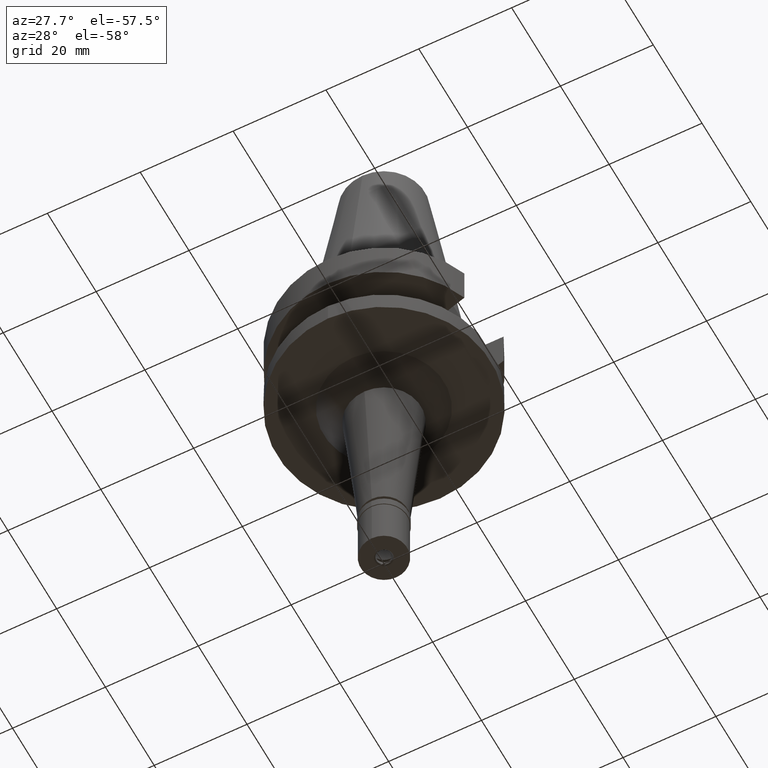
[diagram: clean part render]
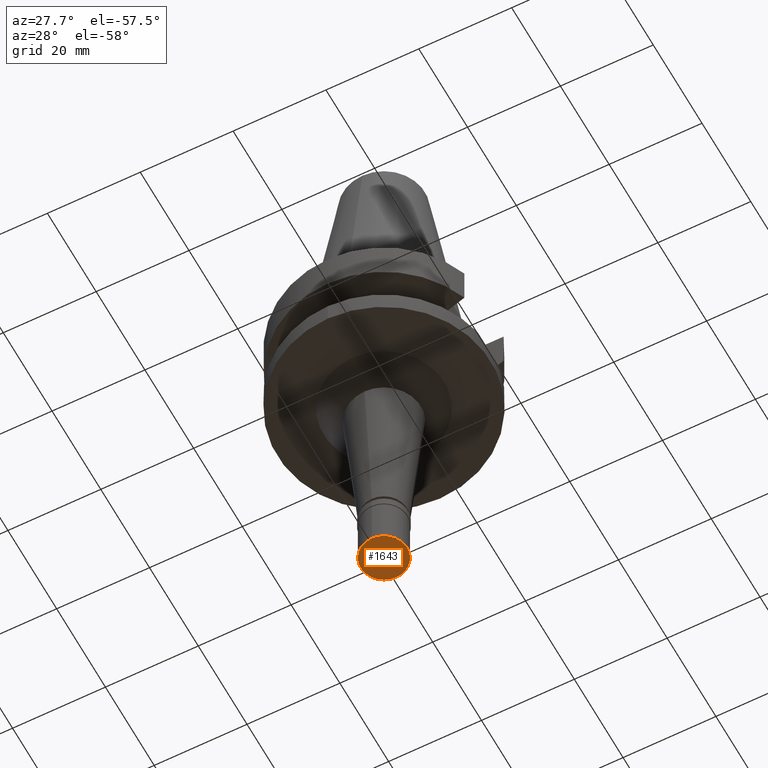
[diagram: same view with one face highlighted and labeled with its STEP entity id]
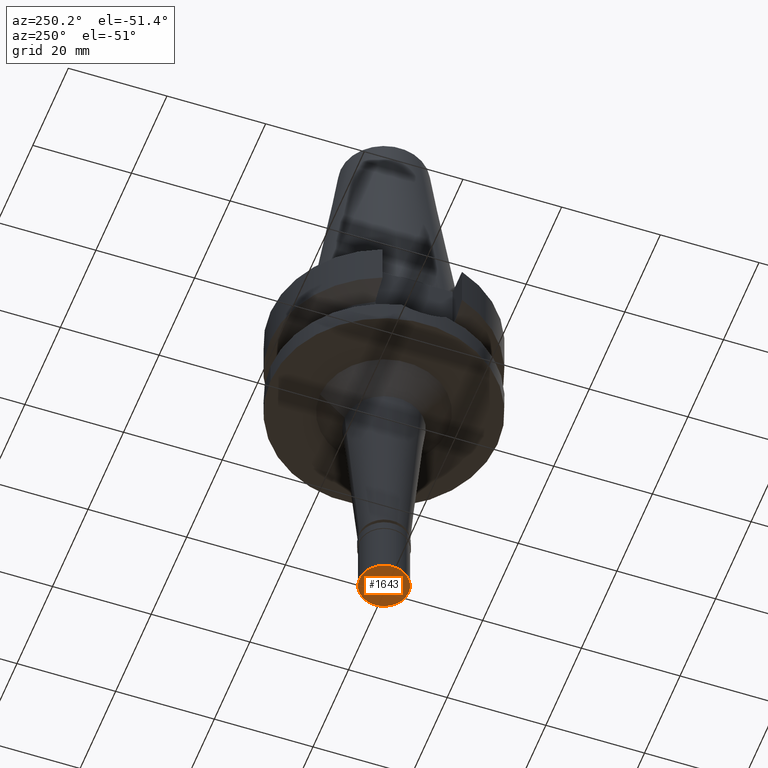
[diagram: same view with one face highlighted and labeled with its STEP entity id]
A machine part, auxiliary view. The second image highlights one B-rep face of the part: STEP entity #1643.
A second angle (auxiliary view) of the same face is appended — the face is thin or edge-on in the first view.
In plain terms, the highlighted planar face has unit normal (0, 0, 1).
Its self-contained STEP definition (entity closure, byte-faithful):
#18 = DIRECTION ( 'NONE',  ( 0.0000000000000000000, 0.0000000000000000000, 1.000000000000000000 ) ) ;
#67 = FACE_BOUND ( 'NONE', #2480, .T. ) ;
#114 = CARTESIAN_POINT ( 'NONE',  ( 0.0000000000000000000, -5.000000000000000000, -13.00000000000000000 ) ) ;
#261 = AXIS2_PLACEMENT_3D ( 'NONE', #759, #714, #1207 ) ;
#337 = DIRECTION ( 'NONE',  ( 0.0000000000000000000, -1.000000000000000000, 0.0000000000000000000 ) ) ;
#342 = ORIENTED_EDGE ( 'NONE', *, *, #675, .F. ) ;
#411 = EDGE_CURVE ( 'NONE', #622, #621, #1702, .T. ) ;
#506 = FACE_OUTER_BOUND ( 'NONE', #1591, .T. ) ;
#621 = VERTEX_POINT ( 'NONE', #114 ) ;
#622 = VERTEX_POINT ( 'NONE', #1734 ) ;
#633 = ORIENTED_EDGE ( 'NONE', *, *, #411, .F. ) ;
#634 = CARTESIAN_POINT ( 'NONE',  ( 0.0000000000000000000, 1.899999999999999911, -13.00000000000000000 ) ) ;
#675 = EDGE_CURVE ( 'NONE', #1710, #1032, #960, .T. ) ;
#714 = DIRECTION ( 'NONE',  ( 0.0000000000000000000, 0.0000000000000000000, 1.000000000000000000 ) ) ;
#759 = CARTESIAN_POINT ( 'NONE',  ( 0.0000000000000000000, 0.0000000000000000000, -13.00000000000000000 ) ) ;
#892 = AXIS2_PLACEMENT_3D ( 'NONE', #2534, #1847, #2065 ) ;
#960 = CIRCLE ( 'NONE', #2649, 1.899999999999999911 ) ;
#1032 = VERTEX_POINT ( 'NONE', #634 ) ;
#1207 = DIRECTION ( 'NONE',  ( 1.000000000000000000, 0.0000000000000000000, 0.0000000000000000000 ) ) ;
#1236 = DIRECTION ( 'NONE',  ( 0.0000000000000000000, 0.0000000000000000000, 1.000000000000000000 ) ) ;
#1328 = CIRCLE ( 'NONE', #892, 1.899999999999999911 ) ;
#1468 = EDGE_CURVE ( 'NONE', #621, #622, #2946, .T. ) ;
#1505 = AXIS2_PLACEMENT_3D ( 'NONE', #2387, #1236, #1897 ) ;
#1591 = EDGE_LOOP ( 'NONE', ( #633, #1798 ) ) ;
#1643 = ADVANCED_FACE ( 'NONE', ( #506, #67 ), #2328, .F. ) ;
#1686 = CARTESIAN_POINT ( 'NONE',  ( 0.0000000000000000000, -1.899999999999999911, -13.00000000000000000 ) ) ;
#1702 = CIRCLE ( 'NONE', #1505, 5.000000000000000000 ) ;
#1710 = VERTEX_POINT ( 'NONE', #1686 ) ;
#1734 = CARTESIAN_POINT ( 'NONE',  ( 0.0000000000000000000, 5.000000000000000000, -13.00000000000000000 ) ) ;
#1798 = ORIENTED_EDGE ( 'NONE', *, *, #1468, .F. ) ;
#1847 = DIRECTION ( 'NONE',  ( 0.0000000000000000000, 0.0000000000000000000, -1.000000000000000000 ) ) ;
#1897 = DIRECTION ( 'NONE',  ( 0.0000000000000000000, 1.000000000000000000, 0.0000000000000000000 ) ) ;
#1978 = ORIENTED_EDGE ( 'NONE', *, *, #2703, .F. ) ;
#2031 = AXIS2_PLACEMENT_3D ( 'NONE', #2278, #18, #2708 ) ;
#2065 = DIRECTION ( 'NONE',  ( 0.0000000000000000000, 1.000000000000000000, 0.0000000000000000000 ) ) ;
#2136 = DIRECTION ( 'NONE',  ( 0.0000000000000000000, 0.0000000000000000000, -1.000000000000000000 ) ) ;
#2278 = CARTESIAN_POINT ( 'NONE',  ( 0.0000000000000000000, 0.0000000000000000000, -13.00000000000000000 ) ) ;
#2328 = PLANE ( 'NONE',  #261 ) ;
#2378 = CARTESIAN_POINT ( 'NONE',  ( 0.0000000000000000000, 0.0000000000000000000, -13.00000000000000000 ) ) ;
#2387 = CARTESIAN_POINT ( 'NONE',  ( 0.0000000000000000000, 0.0000000000000000000, -13.00000000000000000 ) ) ;
#2480 = EDGE_LOOP ( 'NONE', ( #1978, #342 ) ) ;
#2534 = CARTESIAN_POINT ( 'NONE',  ( 0.0000000000000000000, 0.0000000000000000000, -13.00000000000000000 ) ) ;
#2649 = AXIS2_PLACEMENT_3D ( 'NONE', #2378, #2136, #337 ) ;
#2703 = EDGE_CURVE ( 'NONE', #1032, #1710, #1328, .T. ) ;
#2708 = DIRECTION ( 'NONE',  ( 0.0000000000000000000, -1.000000000000000000, 0.0000000000000000000 ) ) ;
#2946 = CIRCLE ( 'NONE', #2031, 5.000000000000000000 ) ;